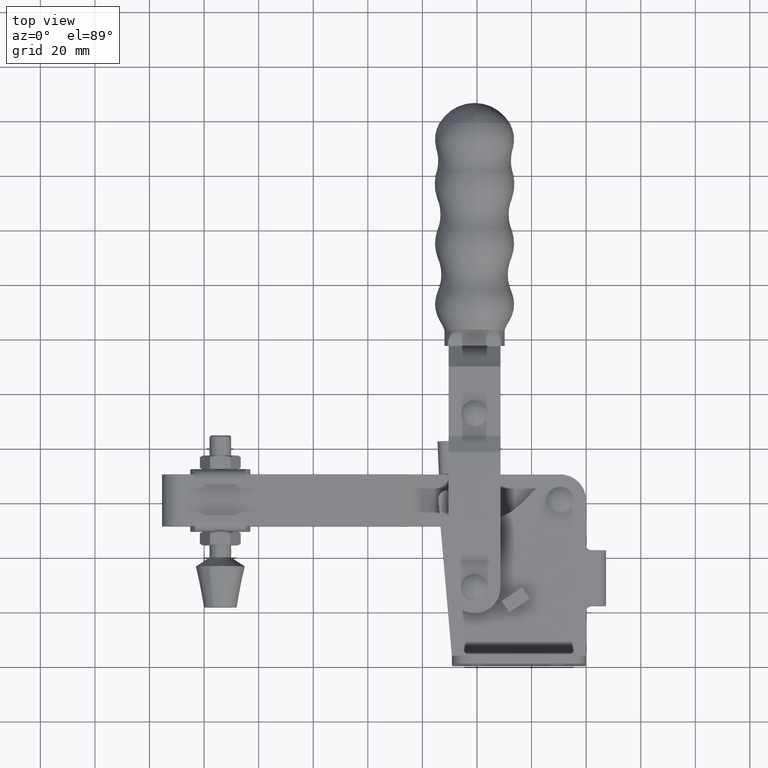
[diagram: clean part render]
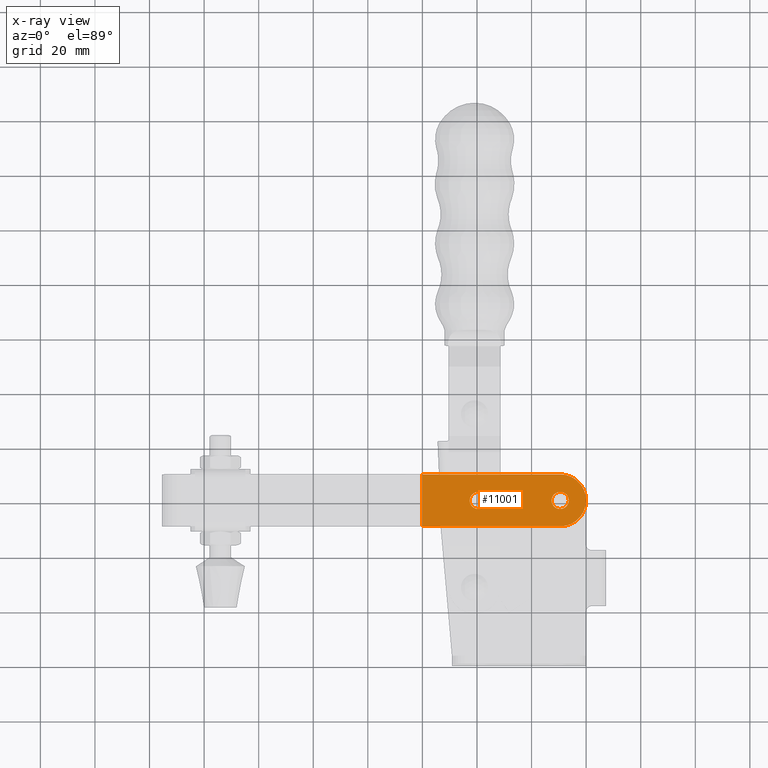
[diagram: x-ray — body ghosted, one internal face saturated and labeled with its STEP entity id]
A machine part, top view, then the same camera in x-ray: the body is ghosted and one INTERNAL B-rep face — a face not visible from any outside direction — is saturated and labeled: STEP entity #11001.
In plain terms, the highlighted planar face has unit normal (-0, -0, -1).
Its self-contained STEP definition (entity closure, byte-faithful):
#45 = CIRCLE ( 'NONE', #6457, 3.149999999999993200 ) ;
#436 = DIRECTION ( 'NONE',  ( 1.000000000000000000, 0.0000000000000000000, -1.152635608206805900E-015 ) ) ;
#446 = CARTESIAN_POINT ( 'NONE',  ( -9.517858757461313600, 70.16000000000022400, -5.000000011412454600E-005 ) ) ;
#779 = AXIS2_PLACEMENT_3D ( 'NONE', #7653, #8905, #8657 ) ;
#979 = DIRECTION ( 'NONE',  ( 1.000000000000000000, 4.282062184751169700E-046, -1.152635463438306400E-015 ) ) ;
#1005 = EDGE_CURVE ( 'NONE', #4091, #11381, #8829, .T. ) ;
#1173 = ORIENTED_EDGE ( 'NONE', *, *, #11054, .F. ) ;
#1427 = CARTESIAN_POINT ( 'NONE',  ( -12.66785875746129300, 60.66000000000021000, -5.000000011032283200E-005 ) ) ;
#1644 = EDGE_LOOP ( 'NONE', ( #5414, #3652, #10632, #10937, #1173 ) ) ;
#1938 = DIRECTION ( 'NONE',  ( -1.152635463438306400E-015, -1.774744443752837800E-030, -1.000000000000000000 ) ) ;
#2415 = FACE_OUTER_BOUND ( 'NONE', #1644, .T. ) ;
#2432 = DIRECTION ( 'NONE',  ( 1.000000000000000000, 4.282062184751169700E-046, -1.152635463438306400E-015 ) ) ;
#2489 = CARTESIAN_POINT ( 'NONE',  ( -60.02954799018247900, 51.16000000000018800, -5.000000005610154900E-005 ) ) ;
#2643 = VERTEX_POINT ( 'NONE', #9494 ) ;
#2747 = VECTOR ( 'NONE', #6224, 1000.000000000000000 ) ;
#3142 = CIRCLE ( 'NONE', #4153, 3.149999999999993200 ) ;
#3445 = CIRCLE ( 'NONE', #6047, 3.149999999999993200 ) ;
#3519 = DIRECTION ( 'NONE',  ( 1.152635463438310800E-015, 1.774744443752837800E-030, 1.000000000000000000 ) ) ;
#3652 = ORIENTED_EDGE ( 'NONE', *, *, #5775, .T. ) ;
#3836 = CARTESIAN_POINT ( 'NONE',  ( -68.19699137258471900, 70.16000000000022400, -5.000000004648891100E-005 ) ) ;
#4091 = VERTEX_POINT ( 'NONE', #8977 ) ;
#4153 = AXIS2_PLACEMENT_3D ( 'NONE', #4402, #11034, #5345 ) ;
#4178 = ORIENTED_EDGE ( 'NONE', *, *, #10847, .F. ) ;
#4280 = EDGE_CURVE ( 'NONE', #2643, #11509, #5243, .T. ) ;
#4379 = ORIENTED_EDGE ( 'NONE', *, *, #4280, .F. ) ;
#4402 = CARTESIAN_POINT ( 'NONE',  ( -9.517858757461306500, 60.66000000000021000, -5.000000011395362800E-005 ) ) ;
#4591 = LINE ( 'NONE', #3836, #11874 ) ;
#4936 = AXIS2_PLACEMENT_3D ( 'NONE', #11741, #6051, #436 ) ;
#5180 = FACE_BOUND ( 'NONE', #12220, .T. ) ;
#5243 = CIRCLE ( 'NONE', #7282, 3.149999999999993200 ) ;
#5345 = DIRECTION ( 'NONE',  ( 1.000000000000000000, 0.0000000000000000000, -1.152634955860528800E-015 ) ) ;
#5414 = ORIENTED_EDGE ( 'NONE', *, *, #9803, .T. ) ;
#5492 = DIRECTION ( 'NONE',  ( 1.152635463438310800E-015, 1.774744443752837800E-030, 1.000000000000000000 ) ) ;
#5528 = DIRECTION ( 'NONE',  ( 1.152635463438310800E-015, 1.774744443752837800E-030, 1.000000000000000000 ) ) ;
#5775 = EDGE_CURVE ( 'NONE', #8724, #4091, #10996, .T. ) ;
#5970 = ORIENTED_EDGE ( 'NONE', *, *, #10844, .F. ) ;
#6047 = AXIS2_PLACEMENT_3D ( 'NONE', #9158, #3519, #10105 ) ;
#6051 = DIRECTION ( 'NONE',  ( 1.152635463438310800E-015, 1.774744443752837800E-030, 1.000000000000000000 ) ) ;
#6224 = DIRECTION ( 'NONE',  ( -0.0000000000000000000, -1.000000000000000000, 1.749992810198821300E-030 ) ) ;
#6336 = CARTESIAN_POINT ( 'NONE',  ( -36.36785875746134900, 60.66000000000021000, -5.000000008347133200E-005 ) ) ;
#6433 = AXIS2_PLACEMENT_3D ( 'NONE', #11332, #1938, #8497 ) ;
#6457 = AXIS2_PLACEMENT_3D ( 'NONE', #11182, #5492, #12136 ) ;
#6585 = PLANE ( 'NONE',  #6433 ) ;
#6775 = VERTEX_POINT ( 'NONE', #10673 ) ;
#7093 = EDGE_CURVE ( 'NONE', #8682, #6775, #45, .T. ) ;
#7282 = AXIS2_PLACEMENT_3D ( 'NONE', #11221, #5528, #12171 ) ;
#7653 = CARTESIAN_POINT ( 'NONE',  ( -9.517858757461306500, 60.66000000000021000, -5.000000011395362800E-005 ) ) ;
#8048 = CARTESIAN_POINT ( 'NONE',  ( -68.19699137258473300, 51.16000000000018800, -5.000000004648891100E-005 ) ) ;
#8471 = VECTOR ( 'NONE', #2432, 1000.000000000000000 ) ;
#8497 = DIRECTION ( 'NONE',  ( 1.000000000000000000, 4.282062184751169700E-046, -1.152635463438306400E-015 ) ) ;
#8657 = DIRECTION ( 'NONE',  ( 1.000000000000000000, 0.0000000000000000000, -1.152635608206805900E-015 ) ) ;
#8682 = VERTEX_POINT ( 'NONE', #1427 ) ;
#8724 = VERTEX_POINT ( 'NONE', #2489 ) ;
#8829 = CIRCLE ( 'NONE', #779, 9.500000000000010700 ) ;
#8905 = DIRECTION ( 'NONE',  ( 1.152635463438310800E-015, 1.774744443752837800E-030, 1.000000000000000000 ) ) ;
#8909 = CARTESIAN_POINT ( 'NONE',  ( -60.02954799018246500, 70.16000000000022400, -5.000000005610154900E-005 ) ) ;
#8954 = CARTESIAN_POINT ( 'NONE',  ( -60.02954799018247900, 51.16000000000018800, -5.000000005610154900E-005 ) ) ;
#8977 = CARTESIAN_POINT ( 'NONE',  ( -9.517858757461313600, 51.16000000000021700, -5.050000012843561400E-005 ) ) ;
#9158 = CARTESIAN_POINT ( 'NONE',  ( -39.51785875746134000, 60.66000000000021000, -5.000000007984052800E-005 ) ) ;
#9494 = CARTESIAN_POINT ( 'NONE',  ( -42.66785875746132500, 60.66000000000021000, -5.000000007620973200E-005 ) ) ;
#9511 = ORIENTED_EDGE ( 'NONE', *, *, #7093, .F. ) ;
#9717 = VERTEX_POINT ( 'NONE', #446 ) ;
#9768 = CIRCLE ( 'NONE', #4936, 9.500000000000010700 ) ;
#9803 = EDGE_CURVE ( 'NONE', #11341, #8724, #10259, .T. ) ;
#9924 = FACE_BOUND ( 'NONE', #10457, .T. ) ;
#10105 = DIRECTION ( 'NONE',  ( 1.000000000000000000, 0.0000000000000000000, -1.152634955860528800E-015 ) ) ;
#10259 = LINE ( 'NONE', #8954, #2747 ) ;
#10457 = EDGE_LOOP ( 'NONE', ( #5970, #9511 ) ) ;
#10632 = ORIENTED_EDGE ( 'NONE', *, *, #1005, .T. ) ;
#10673 = CARTESIAN_POINT ( 'NONE',  ( -6.367858757461313200, 60.66000000000021000, -5.000000011758443200E-005 ) ) ;
#10844 = EDGE_CURVE ( 'NONE', #6775, #8682, #3142, .T. ) ;
#10847 = EDGE_CURVE ( 'NONE', #11509, #2643, #3445, .T. ) ;
#10858 = CARTESIAN_POINT ( 'NONE',  ( -0.01785875746131496100, 60.66000000000021000, -5.000000012490367100E-005 ) ) ;
#10937 = ORIENTED_EDGE ( 'NONE', *, *, #11313, .T. ) ;
#10996 = LINE ( 'NONE', #8048, #8471 ) ;
#11001 = ADVANCED_FACE ( 'NONE', ( #5180, #9924, #2415 ), #6585, .F. ) ;
#11034 = DIRECTION ( 'NONE',  ( 1.152635463438310800E-015, 1.774744443752837800E-030, 1.000000000000000000 ) ) ;
#11054 = EDGE_CURVE ( 'NONE', #11341, #9717, #4591, .T. ) ;
#11182 = CARTESIAN_POINT ( 'NONE',  ( -9.517858757461306500, 60.66000000000021000, -5.000000011395362800E-005 ) ) ;
#11221 = CARTESIAN_POINT ( 'NONE',  ( -39.51785875746134000, 60.66000000000021000, -5.000000007984052800E-005 ) ) ;
#11313 = EDGE_CURVE ( 'NONE', #11381, #9717, #9768, .T. ) ;
#11332 = CARTESIAN_POINT ( 'NONE',  ( -68.19699137258471900, 70.16000000000022400, -5.000000004648891100E-005 ) ) ;
#11341 = VERTEX_POINT ( 'NONE', #8909 ) ;
#11381 = VERTEX_POINT ( 'NONE', #10858 ) ;
#11509 = VERTEX_POINT ( 'NONE', #6336 ) ;
#11741 = CARTESIAN_POINT ( 'NONE',  ( -9.517858757461306500, 60.66000000000021000, -5.000000011395362800E-005 ) ) ;
#11874 = VECTOR ( 'NONE', #979, 1000.000000000000000 ) ;
#12136 = DIRECTION ( 'NONE',  ( 1.000000000000000000, 0.0000000000000000000, -1.152634955860528800E-015 ) ) ;
#12171 = DIRECTION ( 'NONE',  ( 1.000000000000000000, 0.0000000000000000000, -1.152634955860528800E-015 ) ) ;
#12220 = EDGE_LOOP ( 'NONE', ( #4178, #4379 ) ) ;